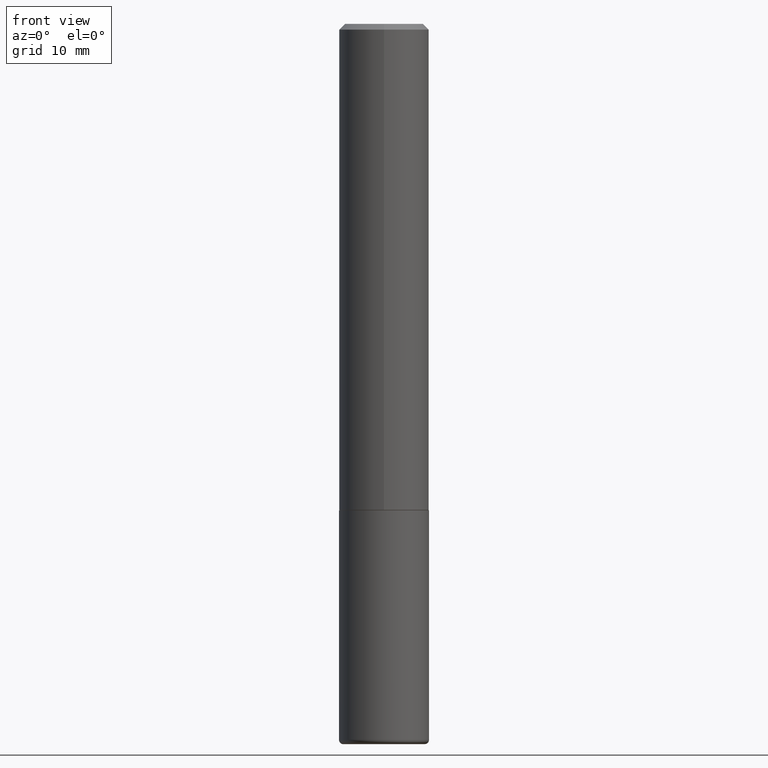
[diagram: clean part render]
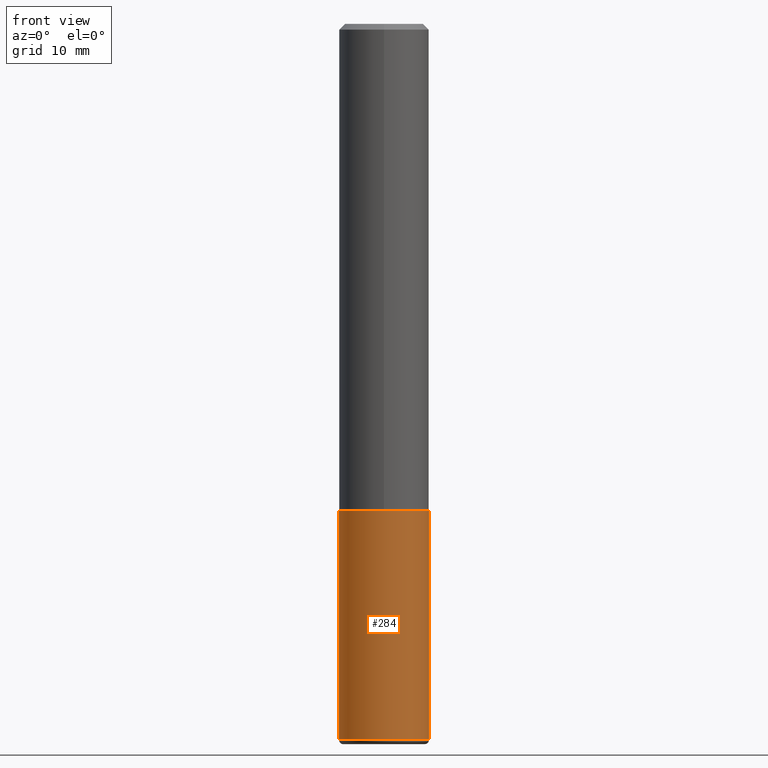
[diagram: same view with one face highlighted and labeled with its STEP entity id]
A machine part, front view. The second image highlights one B-rep face of the part: STEP entity #284.
In plain terms, the highlighted cylindrical surface (partial cylindrical patch) has radius 3.9688 mm, axis along (-0, 0, 1).
Its self-contained STEP definition (entity closure, byte-faithful):
#8 = EDGE_CURVE ( 'NONE', #390, #156, #274, .T. ) ;
#20 = DIRECTION ( 'NONE',  ( 1.000000000000000000, -6.982962677686269077E-15, 0.000000000000000000 ) ) ;
#25 = DIRECTION ( 'NONE',  ( -2.445468806185136597E-29, 3.491481338843145583E-15, 1.000000000000000000 ) ) ;
#30 = EDGE_LOOP ( 'NONE', ( #242, #410, #330, #44 ) ) ;
#44 = ORIENTED_EDGE ( 'NONE', *, *, #8, .F. ) ;
#79 = CARTESIAN_POINT ( 'NONE',  ( 0.1562500000000000000, -6.984708418355709513E-15, -1.688000000000000167 ) ) ;
#83 = DIRECTION ( 'NONE',  ( 1.000000000000000000, -6.982962677686270655E-15, 0.000000000000000000 ) ) ;
#99 = CARTESIAN_POINT ( 'NONE',  ( -0.1562500000000000000, 1.110223024625156540E-15, -7.685836078523291160E-30 ) ) ;
#101 = VERTEX_POINT ( 'NONE', #262 ) ;
#131 = LINE ( 'NONE', #99, #183 ) ;
#132 = EDGE_CURVE ( 'NONE', #347, #156, #271, .T. ) ;
#133 = DIRECTION ( 'NONE',  ( 1.000000000000000000, -6.982962677686266711E-15, 4.876176775795936353E-29 ) ) ;
#149 = VECTOR ( 'NONE', #357, 39.37007874015748143 ) ;
#156 = VERTEX_POINT ( 'NONE', #79 ) ;
#183 = VECTOR ( 'NONE', #226, 39.37007874015748143 ) ;
#187 = EDGE_CURVE ( 'NONE', #101, #347, #321, .T. ) ;
#208 = AXIS2_PLACEMENT_3D ( 'NONE', #373, #286, #83 ) ;
#226 = DIRECTION ( 'NONE',  ( -2.445468806185136877E-29, 3.491481338843145188E-15, 1.000000000000000000 ) ) ;
#242 = ORIENTED_EDGE ( 'NONE', *, *, #394, .F. ) ;
#262 = CARTESIAN_POINT ( 'NONE',  ( -0.1562499999999999167, -7.566108102400061717E-15, -2.484999999999999876 ) ) ;
#271 = LINE ( 'NONE', #386, #149 ) ;
#274 = CIRCLE ( 'NONE', #314, 0.1562500000000000000 ) ;
#280 = AXIS2_PLACEMENT_3D ( 'NONE', #318, #25, #133 ) ;
#284 = ADVANCED_FACE ( 'NONE', ( #295 ), #326, .T. ) ;
#286 = DIRECTION ( 'NONE',  ( -2.445468806185136597E-29, 3.491481338843145583E-15, 1.000000000000000000 ) ) ;
#295 = FACE_OUTER_BOUND ( 'NONE', #30, .T. ) ;
#300 = CARTESIAN_POINT ( 'NONE',  ( -0.1562500000000000000, -6.174752788871067364E-15, -1.688000000000000167 ) ) ;
#314 = AXIS2_PLACEMENT_3D ( 'NONE', #319, #375, #20 ) ;
#318 = CARTESIAN_POINT ( 'NONE',  ( 0.000000000000000000, 0.000000000000000000, 0.000000000000000000 ) ) ;
#319 = CARTESIAN_POINT ( 'NONE',  ( 4.127951344840510809E-29, -5.893620499967230340E-15, -1.688000000000000167 ) ) ;
#321 = CIRCLE ( 'NONE', #208, 0.1562499999999999722 ) ;
#326 = CYLINDRICAL_SURFACE ( 'NONE', #280, 0.1562500000000000000 ) ;
#330 = ORIENTED_EDGE ( 'NONE', *, *, #132, .T. ) ;
#347 = VERTEX_POINT ( 'NONE', #355 ) ;
#355 = CARTESIAN_POINT ( 'NONE',  ( 0.1562499999999999167, -9.767419045413696643E-15, -2.484999999999999876 ) ) ;
#357 = DIRECTION ( 'NONE',  ( -2.445468806185136877E-29, 3.491481338843145188E-15, 1.000000000000000000 ) ) ;
#373 = CARTESIAN_POINT ( 'NONE',  ( 6.076989983370064174E-29, -8.676331127025216680E-15, -2.484999999999999876 ) ) ;
#375 = DIRECTION ( 'NONE',  ( -2.445468806185136597E-29, 3.491481338843145583E-15, 1.000000000000000000 ) ) ;
#386 = CARTESIAN_POINT ( 'NONE',  ( 0.1562500000000000000, -1.091087918388479174E-15, 7.619026212181150377E-30 ) ) ;
#390 = VERTEX_POINT ( 'NONE', #300 ) ;
#394 = EDGE_CURVE ( 'NONE', #101, #390, #131, .T. ) ;
#410 = ORIENTED_EDGE ( 'NONE', *, *, #187, .T. ) ;